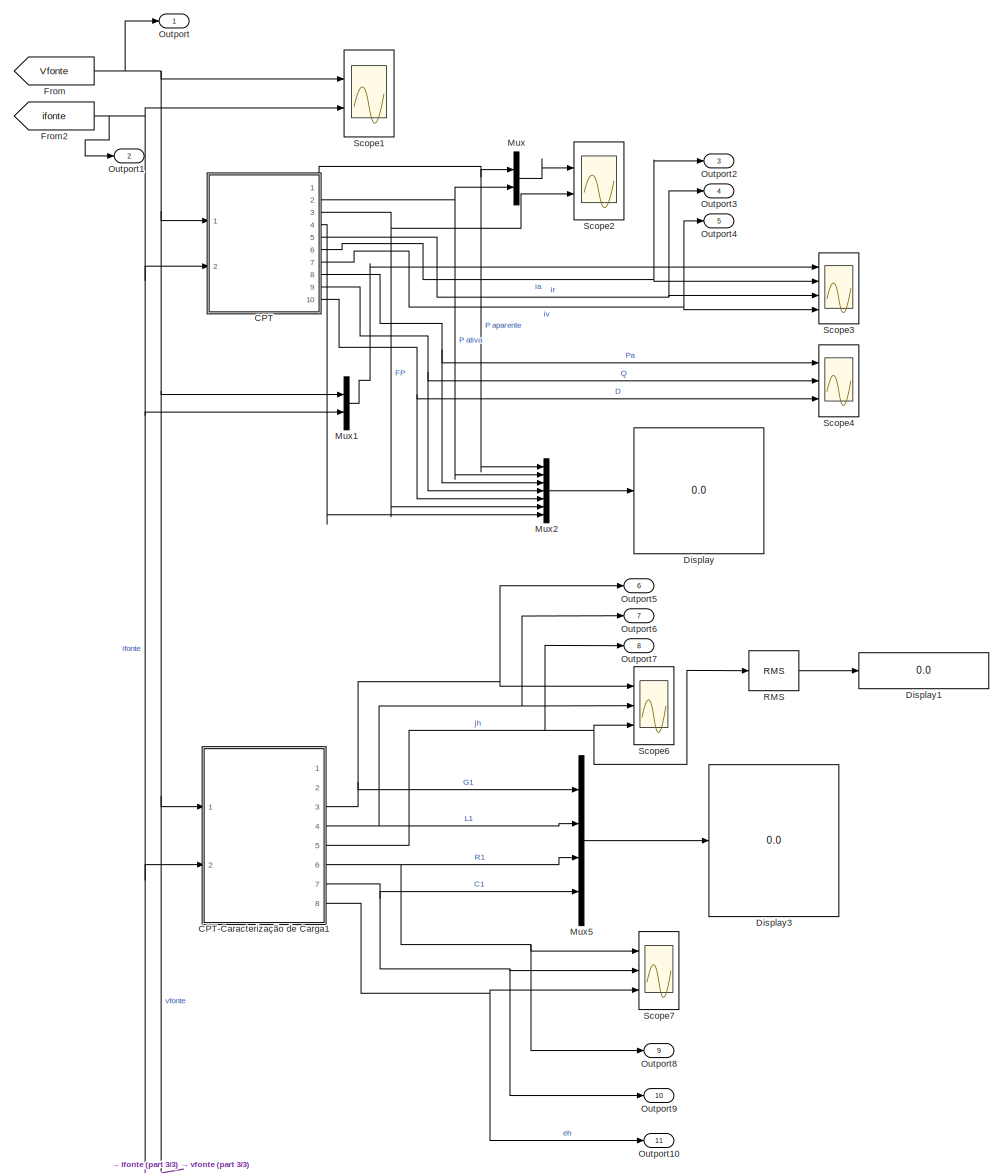
[diagram: root canvas - part 1/3, right side, full height]
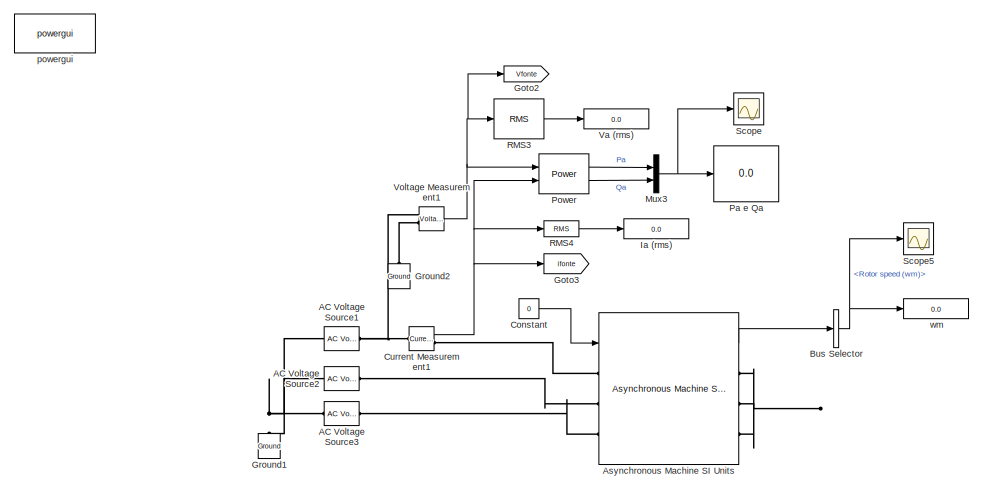
[diagram: root canvas - part 2/3, middle left region]
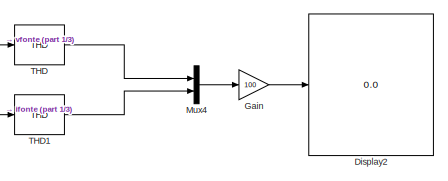
[diagram: root canvas - part 3/3, bottom right region]
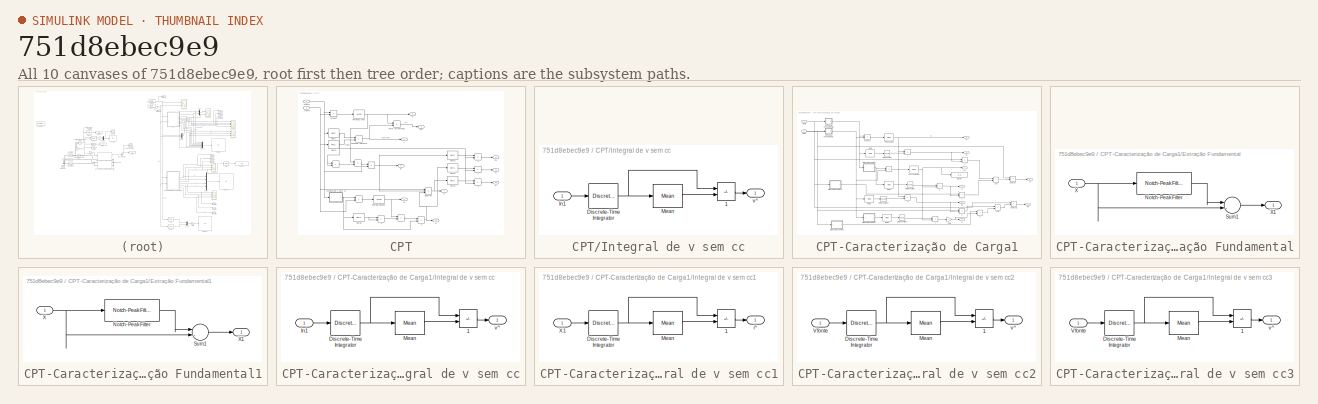
[diagram: thumbnail index - all 10 canvases of the model, root first then tree order]
MODEL slx_751d8ebec9e9
KIND model
CONFIG AbsTol = auto
CONFIG EnableMultiTasking = off
CONFIG FixedStep = auto
CONFIG MaxStep = auto
CONFIG MinStep = auto
CONFIG RelTol = 1e-3
CONFIG SampleTimeConstraint = Unconstrained
CONFIG SolverName = VariableStepAuto
CONFIG StartTime = 0.0
CONFIG StopTime = 3
BLOCK [Reference] AC Voltage Source1  REF=spsACVoltageSourceLib/AC Voltage Source
  NameLocation = left
  Ports = [0, 0, 0, 0, 0, 1, 1]
  SourceBlock = spsACVoltageSourceLib/AC Voltage Source
  SourceProductBaseCode = PS
  SourceType = AC Voltage Source
BLOCK [Reference] AC Voltage Source2  REF=spsACVoltageSourceLib/AC Voltage Source
  NameLocation = left
  Ports = [0, 0, 0, 0, 0, 1, 1]
  SourceBlock = spsACVoltageSourceLib/AC Voltage Source
  SourceProductBaseCode = PS
  SourceType = AC Voltage Source
BLOCK [Reference] AC Voltage Source3  REF=spsACVoltageSourceLib/AC Voltage Source
  NameLocation = left
  Ports = [0, 0, 0, 0, 0, 1, 1]
  SourceBlock = spsACVoltageSourceLib/AC Voltage Source
  SourceProductBaseCode = PS
  SourceType = AC Voltage Source
BLOCK [Reference] Asynchronous Machine SI Units  REF=spsAsynchronousMachineSIUnitsLib/Asynchronous Machine
SI Units
  Ports = [1, 1, 0, 0, 0, 3, 3]
  SourceBlock = spsAsynchronousMachineSIUnitsLib/Asynchronous Machine\nSI Units
  SourceProductBaseCode = PS
  SourceType = Asynchronous Machine
BLOCK [BusSelector] Bus Selector
  OutputSignals = Mechanical.Rotor speed (wm)
  Ports = [1, 1]
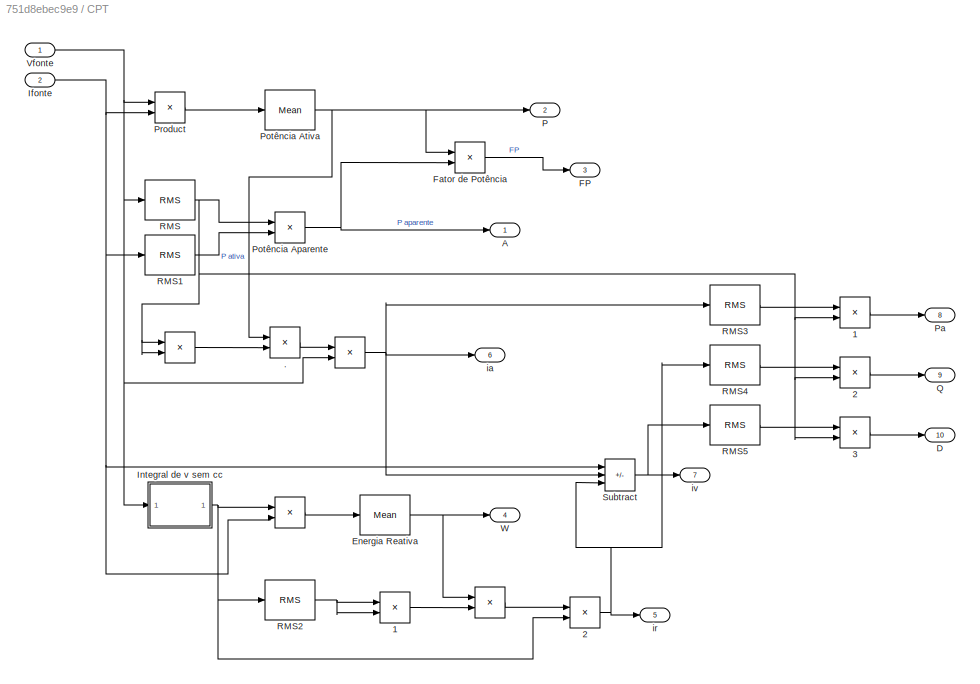
BLOCK [SubSystem] CPT
  Ports = [2, 10]
  RequestExecContextInheritance = off
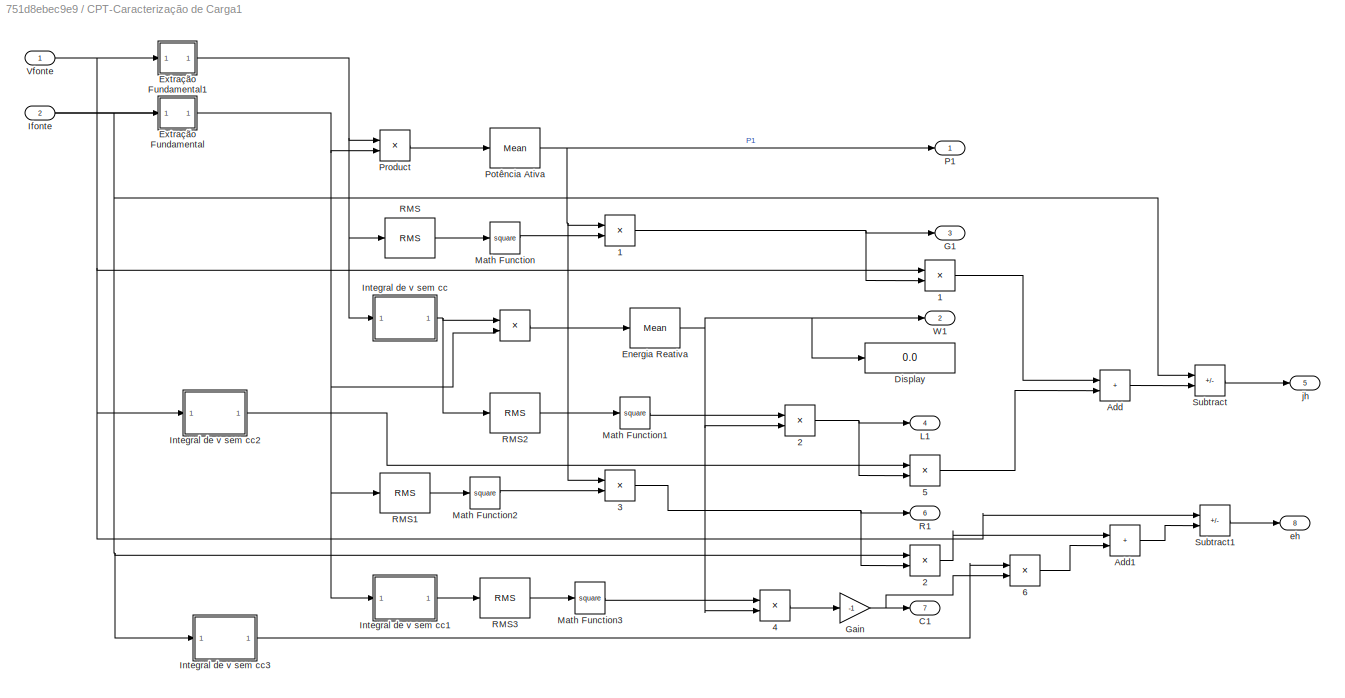
BLOCK [SubSystem] CPT-Caracterização de Carga1
  Ports = [2, 8]
  RequestExecContextInheritance = off
BLOCK [Product] CPT-Caracterização de Carga1/  
  Ports = [2, 1]
BLOCK [Product] CPT-Caracterização de Carga1/   1
  Inputs = */
  Ports = [2, 1]
BLOCK [Product] CPT-Caracterização de Carga1/   2
  Inputs = */
  Ports = [2, 1]
BLOCK [Product] CPT-Caracterização de Carga1/   3
  Inputs = */
  Ports = [2, 1]
BLOCK [Product] CPT-Caracterização de Carga1/   4
  Inputs = */
  Ports = [2, 1]
BLOCK [Product] CPT-Caracterização de Carga1/   5
  Inputs = */
  Ports = [2, 1]
BLOCK [Product] CPT-Caracterização de Carga1/   6
  Inputs = */
  Ports = [2, 1]
BLOCK [Product] CPT-Caracterização de Carga1/  1
  Ports = [2, 1]
BLOCK [Product] CPT-Caracterização de Carga1/  2
  Ports = [2, 1]
BLOCK [Sum] CPT-Caracterização de Carga1/Add
  IconShape = rectangular
  Ports = [2, 1]
BLOCK [Sum] CPT-Caracterização de Carga1/Add1
  IconShape = rectangular
  Ports = [2, 1]
BLOCK [Outport] CPT-Caracterização de Carga1/C1
  Port = 7
BLOCK [Display] CPT-Caracterização de Carga1/Display
  Decimation = 1
  Ports = [1]
BLOCK [Reference] CPT-Caracterização de Carga1/Energia Reativa  REF=spsMeanLib/Mean
  Ports = [1, 1]
  SourceBlock = spsMeanLib/Mean
  SourceProductBaseCode = PS
  SourceType = Mean
BLOCK [SubSystem] CPT-Caracterização de Carga1/Extração Fundamental
  Ports = [1, 1]
  RequestExecContextInheritance = off
BLOCK [Reference] CPT-Caracterização de Carga1/Extração Fundamental/Notch-Peak Filter  REF=dspfdesign/Notch-Peak Filter
  Ports = [1, 1]
  SourceBlock = dspfdesign/Notch-Peak Filter
  SourceProductBaseCode = DS
  SourceType = dsp.simulink.NotchPeakFilter
BLOCK [Sum] CPT-Caracterização de Carga1/Extração Fundamental/Sum1
  Inputs = |-+
  Ports = [2, 1]
BLOCK [Inport] CPT-Caracterização de Carga1/Extração Fundamental/X
BLOCK [Outport] CPT-Caracterização de Carga1/Extração Fundamental/X1
BLOCK [SubSystem] CPT-Caracterização de Carga1/Extração Fundamental1
  Ports = [1, 1]
  RequestExecContextInheritance = off
BLOCK [Reference] CPT-Caracterização de Carga1/Extração Fundamental1/Notch-Peak Filter  REF=dspfdesign/Notch-Peak Filter
  Ports = [1, 1]
  SourceBlock = dspfdesign/Notch-Peak Filter
  SourceProductBaseCode = DS
  SourceType = dsp.simulink.NotchPeakFilter
BLOCK [Sum] CPT-Caracterização de Carga1/Extração Fundamental1/Sum1
  Inputs = |-+
  Ports = [2, 1]
BLOCK [Inport] CPT-Caracterização de Carga1/Extração Fundamental1/X
BLOCK [Outport] CPT-Caracterização de Carga1/Extração Fundamental1/X1
BLOCK [Outport] CPT-Caracterização de Carga1/G1
  Port = 3
BLOCK [Gain] CPT-Caracterização de Carga1/Gain
  Gain = -1
BLOCK [Inport] CPT-Caracterização de Carga1/Ifonte
  Port = 2
BLOCK [SubSystem] CPT-Caracterização de Carga1/Integral de v sem cc
  Ports = [1, 1]
  RequestExecContextInheritance = off
BLOCK [Sum] CPT-Caracterização de Carga1/Integral de v sem cc/1
  IconShape = rectangular
  Inputs = +-
  Ports = [2, 1]
BLOCK [DiscreteIntegrator] CPT-Caracterização de Carga1/Integral de v sem cc/Discrete-Time Integrator
  ICPrevOutput = DiscIntNeverNeededParam
  ICPrevScaledInput = DiscIntNeverNeededParam
  InitialConditionSetting = Auto
  IntegratorMethod = Integration: Trapezoidal
  Ports = [1, 1]
  SampleTime = 1/12000
BLOCK [Inport] CPT-Caracterização de Carga1/Integral de v sem cc/In1
BLOCK [Reference] CPT-Caracterização de Carga1/Integral de v sem cc/Mean  REF=spsMeanLib/Mean
  Ports = [1, 1]
  SourceBlock = spsMeanLib/Mean
  SourceProductBaseCode = PS
  SourceType = Mean
BLOCK [Outport] CPT-Caracterização de Carga1/Integral de v sem cc/v^
BLOCK [SubSystem] CPT-Caracterização de Carga1/Integral de v sem cc1
  Ports = [1, 1]
  RequestExecContextInheritance = off
BLOCK [Sum] CPT-Caracterização de Carga1/Integral de v sem cc1/1
  IconShape = rectangular
  Inputs = +-
  Ports = [2, 1]
BLOCK [DiscreteIntegrator] CPT-Caracterização de Carga1/Integral de v sem cc1/Discrete-Time Integrator
  ICPrevOutput = DiscIntNeverNeededParam
  ICPrevScaledInput = DiscIntNeverNeededParam
  InitialConditionSetting = Auto
  IntegratorMethod = Integration: Trapezoidal
  Ports = [1, 1]
  SampleTime = 1/12000
BLOCK [Reference] CPT-Caracterização de Carga1/Integral de v sem cc1/Mean  REF=spsMeanLib/Mean
  Ports = [1, 1]
  SourceBlock = spsMeanLib/Mean
  SourceProductBaseCode = PS
  SourceType = Mean
BLOCK [Inport] CPT-Caracterização de Carga1/Integral de v sem cc1/X1
BLOCK [Outport] CPT-Caracterização de Carga1/Integral de v sem cc1/i^
BLOCK [SubSystem] CPT-Caracterização de Carga1/Integral de v sem cc2
  Ports = [1, 1]
  RequestExecContextInheritance = off
BLOCK [Sum] CPT-Caracterização de Carga1/Integral de v sem cc2/1
  IconShape = rectangular
  Inputs = +-
  Ports = [2, 1]
BLOCK [DiscreteIntegrator] CPT-Caracterização de Carga1/Integral de v sem cc2/Discrete-Time Integrator
  ICPrevOutput = DiscIntNeverNeededParam
  ICPrevScaledInput = DiscIntNeverNeededParam
  InitialConditionSetting = Auto
  IntegratorMethod = Integration: Trapezoidal
  Ports = [1, 1]
  SampleTime = 1/12000
BLOCK [Reference] CPT-Caracterização de Carga1/Integral de v sem cc2/Mean  REF=spsMeanLib/Mean
  Ports = [1, 1]
  SourceBlock = spsMeanLib/Mean
  SourceProductBaseCode = PS
  SourceType = Mean
BLOCK [Inport] CPT-Caracterização de Carga1/Integral de v sem cc2/Vfonte
BLOCK [Outport] CPT-Caracterização de Carga1/Integral de v sem cc2/v^
BLOCK [SubSystem] CPT-Caracterização de Carga1/Integral de v sem cc3
  Ports = [1, 1]
  RequestExecContextInheritance = off
BLOCK [Sum] CPT-Caracterização de Carga1/Integral de v sem cc3/1
  IconShape = rectangular
  Inputs = +-
  Ports = [2, 1]
BLOCK [DiscreteIntegrator] CPT-Caracterização de Carga1/Integral de v sem cc3/Discrete-Time Integrator
  ICPrevOutput = DiscIntNeverNeededParam
  ICPrevScaledInput = DiscIntNeverNeededParam
  InitialConditionSetting = Auto
  IntegratorMethod = Integration: Trapezoidal
  Ports = [1, 1]
  SampleTime = 1/12000
BLOCK [Reference] CPT-Caracterização de Carga1/Integral de v sem cc3/Mean  REF=spsMeanLib/Mean
  Ports = [1, 1]
  SourceBlock = spsMeanLib/Mean
  SourceProductBaseCode = PS
  SourceType = Mean
BLOCK [Inport] CPT-Caracterização de Carga1/Integral de v sem cc3/Vfonte
BLOCK [Outport] CPT-Caracterização de Carga1/Integral de v sem cc3/v^
BLOCK [Outport] CPT-Caracterização de Carga1/L1
  Port = 4
BLOCK [Math] CPT-Caracterização de Carga1/Math Function
  Operator = square
  Ports = [1, 1]
BLOCK [Math] CPT-Caracterização de Carga1/Math Function1
  Operator = square
  Ports = [1, 1]
BLOCK [Math] CPT-Caracterização de Carga1/Math Function2
  Operator = square
  Ports = [1, 1]
BLOCK [Math] CPT-Caracterização de Carga1/Math Function3
  Operator = square
  Ports = [1, 1]
BLOCK [Outport] CPT-Caracterização de Carga1/P1
BLOCK [Reference] CPT-Caracterização de Carga1/Potência Ativa  REF=spsMeanLib/Mean
  Ports = [1, 1]
  SourceBlock = spsMeanLib/Mean
  SourceProductBaseCode = PS
  SourceType = Mean
BLOCK [Product] CPT-Caracterização de Carga1/Product
  Ports = [2, 1]
BLOCK [Outport] CPT-Caracterização de Carga1/R1
  Port = 6
BLOCK [Reference] CPT-Caracterização de Carga1/RMS  REF=spsRMSLib/RMS
  Ports = [1, 1]
  SourceBlock = spsRMSLib/RMS
  SourceProductBaseCode = PS
  SourceType = RMS
BLOCK [Reference] CPT-Caracterização de Carga1/RMS1  REF=spsRMSLib/RMS
  Ports = [1, 1]
  SourceBlock = spsRMSLib/RMS
  SourceProductBaseCode = PS
  SourceType = RMS
BLOCK [Reference] CPT-Caracterização de Carga1/RMS2  REF=spsRMSLib/RMS
  Ports = [1, 1]
  SourceBlock = spsRMSLib/RMS
  SourceProductBaseCode = PS
  SourceType = RMS
BLOCK [Reference] CPT-Caracterização de Carga1/RMS3  REF=spsRMSLib/RMS
  Ports = [1, 1]
  SourceBlock = spsRMSLib/RMS
  SourceProductBaseCode = PS
  SourceType = RMS
BLOCK [Sum] CPT-Caracterização de Carga1/Subtract
  IconShape = rectangular
  Inputs = +-
  Ports = [2, 1]
BLOCK [Sum] CPT-Caracterização de Carga1/Subtract1
  IconShape = rectangular
  Inputs = +-
  Ports = [2, 1]
BLOCK [Inport] CPT-Caracterização de Carga1/Vfonte
BLOCK [Outport] CPT-Caracterização de Carga1/W1
  Port = 2
BLOCK [Outport] CPT-Caracterização de Carga1/eh
  Port = 8
BLOCK [Outport] CPT-Caracterização de Carga1/jh
  Port = 5
BLOCK [Product] CPT/  
  Ports = [2, 1]
BLOCK [Product] CPT/   
  Inputs = */
  Ports = [2, 1]
BLOCK [Product] CPT/    
  Ports = [2, 1]
BLOCK [Product] CPT/     
  Ports = [2, 1]
BLOCK [Product] CPT/     1
  Ports = [2, 1]
BLOCK [Product] CPT/     2
  Ports = [2, 1]
BLOCK [Product] CPT/     3
  Ports = [2, 1]
BLOCK [Product] CPT/  1
  Ports = [2, 1]
BLOCK [Product] CPT/  2
  Ports = [2, 1]
BLOCK [Product] CPT/.
  Inputs = */
  Ports = [2, 1]
BLOCK [Outport] CPT/A
BLOCK [Outport] CPT/D
  Port = 10
BLOCK [Reference] CPT/Energia Reativa  REF=spsMeanLib/Mean
  Ports = [1, 1]
  SourceBlock = spsMeanLib/Mean
  SourceProductBaseCode = PS
  SourceType = Mean
BLOCK [Outport] CPT/FP
  Port = 3
BLOCK [Product] CPT/Fator de Potência
  Inputs = */
  Ports = [2, 1]
BLOCK [Inport] CPT/Ifonte
  Port = 2
BLOCK [SubSystem] CPT/Integral de v sem cc
  Ports = [1, 1]
  RequestExecContextInheritance = off
BLOCK [Sum] CPT/Integral de v sem cc/1
  IconShape = rectangular
  Inputs = +-
  Ports = [2, 1]
BLOCK [DiscreteIntegrator] CPT/Integral de v sem cc/Discrete-Time Integrator
  ICPrevOutput = DiscIntNeverNeededParam
  ICPrevScaledInput = DiscIntNeverNeededParam
  InitialConditionSetting = Auto
  IntegratorMethod = Integration: Trapezoidal
  Ports = [1, 1]
  SampleTime = 1/12000
BLOCK [Inport] CPT/Integral de v sem cc/In1
BLOCK [Reference] CPT/Integral de v sem cc/Mean  REF=spsMeanLib/Mean
  Ports = [1, 1]
  SourceBlock = spsMeanLib/Mean
  SourceProductBaseCode = PS
  SourceType = Mean
BLOCK [Outport] CPT/Integral de v sem cc/v^
BLOCK [Outport] CPT/P
  Port = 2
BLOCK [Outport] CPT/Pa
  Port = 8
BLOCK [Product] CPT/Potência Aparente
  Ports = [2, 1]
BLOCK [Reference] CPT/Potência Ativa  REF=spsMeanLib/Mean
  Ports = [1, 1]
  SourceBlock = spsMeanLib/Mean
  SourceProductBaseCode = PS
  SourceType = Mean
BLOCK [Product] CPT/Product
  Ports = [2, 1]
BLOCK [Outport] CPT/Q
  Port = 9
BLOCK [Reference] CPT/RMS  REF=spsRMSLib/RMS
  Ports = [1, 1]
  SourceBlock = spsRMSLib/RMS
  SourceProductBaseCode = PS
  SourceType = RMS
BLOCK [Reference] CPT/RMS1  REF=spsRMSLib/RMS
  Ports = [1, 1]
  SourceBlock = spsRMSLib/RMS
  SourceProductBaseCode = PS
  SourceType = RMS
BLOCK [Reference] CPT/RMS2  REF=spsRMSLib/RMS
  Ports = [1, 1]
  SourceBlock = spsRMSLib/RMS
  SourceProductBaseCode = PS
  SourceType = RMS
BLOCK [Reference] CPT/RMS3  REF=spsRMSLib/RMS
  Ports = [1, 1]
  SourceBlock = spsRMSLib/RMS
  SourceProductBaseCode = PS
  SourceType = RMS
BLOCK [Reference] CPT/RMS4  REF=spsRMSLib/RMS
  Ports = [1, 1]
  SourceBlock = spsRMSLib/RMS
  SourceProductBaseCode = PS
  SourceType = RMS
BLOCK [Reference] CPT/RMS5  REF=spsRMSLib/RMS
  Ports = [1, 1]
  SourceBlock = spsRMSLib/RMS
  SourceProductBaseCode = PS
  SourceType = RMS
BLOCK [Sum] CPT/Subtract
  IconShape = rectangular
  Inputs = +--
  Ports = [3, 1]
BLOCK [Inport] CPT/Vfonte
BLOCK [Outport] CPT/W
  Port = 4
BLOCK [Outport] CPT/ia
  Port = 6
BLOCK [Outport] CPT/ir
  Port = 5
BLOCK [Outport] CPT/iv
  Port = 7
BLOCK [Constant] Constant
  Value = 0
BLOCK [Reference] Current Measurement1  REF=spsCurrentMeasurementLib/Current Measurement
  Ports = [0, 1, 0, 0, 0, 1, 1]
  SourceBlock = spsCurrentMeasurementLib/Current Measurement
  SourceProductBaseCode = PS
  SourceType = Current Measurement
  UserDataPersistent = on
BLOCK [Display] Display
  Decimation = 1
  Format = long
  Ports = [1]
BLOCK [Display] Display1
  Decimation = 1
  Format = long
  Ports = [1]
BLOCK [Display] Display2
  Decimation = 1
  Format = long
  Ports = [1]
BLOCK [Display] Display3
  Decimation = 1
  Format = long
  Ports = [1]
BLOCK [From] From
  GotoTag = Vfonte
BLOCK [From] From2
  GotoTag = ifonte
BLOCK [Gain] Gain
  Gain = 100
BLOCK [Goto] Goto2
  GotoTag = Vfonte
BLOCK [Goto] Goto3
  GotoTag = ifonte
BLOCK [Reference] Ground1  REF=spsGroundLib/Ground
  NameLocation = right
  Ports = [0, 0, 0, 0, 0, 1]
  SourceBlock = spsGroundLib/Ground
  SourceProductBaseCode = PS
  SourceType = Ground
BLOCK [Reference] Ground2  REF=spsGroundLib/Ground
  NameLocation = right
  Ports = [0, 0, 0, 0, 0, 1]
  SourceBlock = spsGroundLib/Ground
  SourceProductBaseCode = PS
  SourceType = Ground
BLOCK [Display] Ia (rms)
  Decimation = 1
  Ports = [1]
BLOCK [Mux] Mux
  DisplayOption = bar
  Inputs = 2
  Ports = [2, 1]
BLOCK [Mux] Mux1
  DisplayOption = bar
  Inputs = 2
  Ports = [2, 1]
BLOCK [Mux] Mux2
  DisplayOption = bar
  Inputs = 7
  Ports = [7, 1]
BLOCK [Mux] Mux3
  DisplayOption = bar
  Inputs = 2
  Ports = [2, 1]
BLOCK [Mux] Mux4
  DisplayOption = bar
  Inputs = 2
  Ports = [2, 1]
BLOCK [Mux] Mux5
  DisplayOption = bar
  Ports = [4, 1]
BLOCK [Outport] Outport
BLOCK [Outport] Outport1
  Port = 2
BLOCK [Outport] Outport10
  Port = 11
BLOCK [Outport] Outport2
  Port = 3
BLOCK [Outport] Outport3
  Port = 4
BLOCK [Outport] Outport4
  Port = 5
BLOCK [Outport] Outport5
  Port = 6
BLOCK [Outport] Outport6
  Port = 7
BLOCK [Outport] Outport7
  Port = 8
BLOCK [Outport] Outport8
  Port = 9
BLOCK [Outport] Outport9
  Port = 10
BLOCK [Display] Pa e Qa
  Decimation = 1
  Ports = [1]
BLOCK [Reference] Power  REF=spsPowerLib/Power
  Ports = [2, 2]
  SourceBlock = spsPowerLib/Power
  SourceProductBaseCode = PS
  SourceType = Power
BLOCK [Reference] RMS  REF=spsRMSLib/RMS
  Ports = [1, 1]
  SourceBlock = spsRMSLib/RMS
  SourceProductBaseCode = PS
  SourceType = RMS
BLOCK [Reference] RMS3  REF=spsRMSLib/RMS
  Ports = [1, 1]
  SourceBlock = spsRMSLib/RMS
  SourceProductBaseCode = PS
  SourceType = RMS
BLOCK [Reference] RMS4  REF=spsRMSLib/RMS
  Ports = [1, 1]
  SourceBlock = spsRMSLib/RMS
  SourceProductBaseCode = PS
  SourceType = RMS
BLOCK [Scope] Scope
  Floating = off
  NumInputPorts = 1
  Ports = [1]
  ScopeSpecificationString = Simulink.scopes.TimeScopeBlockCfg('CurrentConfiguration', extmgr.ConfigurationSet(extmgr.Configuration('Core','General UI',true),extmgr.Configuration('Core','Source UI',true),extmgr.Configuration('Sources','WiredSimulink',true,'DataLoggingVariableName','ScopeData1'),extmgr.Configuration('Visuals','Time Domain',true,'SerializedDisplays',{struct('MinYLimReal','-2494.49869','MaxYLimReal','5876.46465'...<+1415ch>
BLOCK [Scope] Scope1
  Floating = off
  NumInputPorts = 2
  Ports = [2]
  ScopeSpecificationString = Simulink.scopes.TimeScopeBlockCfg('CurrentConfiguration', extmgr.ConfigurationSet(extmgr.Configuration('Core','General UI',true),extmgr.Configuration('Core','Source UI',true),extmgr.Configuration('Sources','WiredSimulink',true,'DataLoggingVariableName','ScopeData1'),extmgr.Configuration('Visuals','Time Domain',true,'SerializedDisplays',{struct('MinYLimReal','-224.5064','MaxYLimReal','224.5064','YL...<+1525ch>
BLOCK [Scope] Scope2
  Floating = off
  NumInputPorts = 2
  Ports = [2]
  ScopeSpecificationString = Simulink.scopes.TimeScopeBlockCfg('CurrentConfiguration', extmgr.ConfigurationSet(extmgr.Configuration('Core','General UI',true),extmgr.Configuration('Core','Source UI',true),extmgr.Configuration('Sources','WiredSimulink',true,'DataLoggingVariableName','ScopeData2'),extmgr.Configuration('Visuals','Time Domain',true,'SerializedDisplays',{struct('MinYLimReal','-1202.36531','MaxYLimReal','10821.28779...<+2028ch>
BLOCK [Scope] Scope3
  Floating = off
  NumInputPorts = 4
  Ports = [4]
  ScopeSpecificationString = Simulink.scopes.TimeScopeBlockCfg('CurrentConfiguration', extmgr.ConfigurationSet(extmgr.Configuration('Core','General UI',true),extmgr.Configuration('Core','Source UI',true),extmgr.Configuration('Sources','WiredSimulink',true,'DataLoggingVariableName','ScopeData3'),extmgr.Configuration('Visuals','Time Domain',true,'SerializedDisplays',{struct('MinYLimReal','-224.5064','MaxYLimReal','224.5064','YL...<+3429ch>
BLOCK [Scope] Scope4
  Floating = off
  NumInputPorts = 3
  Ports = [3]
  ScopeSpecificationString = Simulink.scopes.TimeScopeBlockCfg('CurrentConfiguration', extmgr.ConfigurationSet(extmgr.Configuration('Core','General UI',true,'DisplayFullSourceName',true),extmgr.Configuration('Core','Source UI',true),extmgr.Configuration('Sources','WiredSimulink',true,'SampleTime','1/12000','DataLoggingVariableName','ScopeData4'),extmgr.Configuration('Visuals','Time Domain',true,'SerializedDisplays',{struct('M...<+2809ch>
BLOCK [Scope] Scope5
  Floating = off
  NumInputPorts = 1
  Ports = [1]
  ScopeSpecificationString = Simulink.scopes.TimeScopeBlockCfg('CurrentConfiguration', extmgr.ConfigurationSet(extmgr.Configuration('Core','General UI',true),extmgr.Configuration('Core','Source UI',true),extmgr.Configuration('Sources','WiredSimulink',true,'DataLoggingVariableName','ScopeData2'),extmgr.Configuration('Visuals','Time Domain',true,'SerializedDisplays',{struct('MinYLimReal','156.69343','MaxYLimReal','195.23443','Y...<+1487ch>
BLOCK [Scope] Scope6
  Floating = off
  NumInputPorts = 3
  Ports = [3]
  ScopeSpecificationString = Simulink.scopes.TimeScopeBlockCfg('CurrentConfiguration', extmgr.ConfigurationSet(extmgr.Configuration('Core','General UI',true),extmgr.Configuration('Core','Source UI',true),extmgr.Configuration('Sources','WiredSimulink',true,'DataLoggingVariableName','ScopeData5'),extmgr.Configuration('Visuals','Time Domain',true,'SerializedDisplays',{struct('MinYLimReal','0.22166','MaxYLimReal','0.2242','YLabel...<+2745ch>
BLOCK [Scope] Scope7
  Floating = off
  NumInputPorts = 3
  Ports = [3]
  ScopeSpecificationString = Simulink.scopes.TimeScopeBlockCfg('CurrentConfiguration', extmgr.ConfigurationSet(extmgr.Configuration('Core','General UI',true),extmgr.Configuration('Core','Source UI',true),extmgr.Configuration('Sources','WiredSimulink',true),extmgr.Configuration('Visuals','Time Domain',true,'SerializedDisplays',{struct('MinYLimReal','0.71008','MaxYLimReal','3.60926','YLabelReal','','MinYLimMag','0.71008','MaxYL...<+2696ch>
BLOCK [Reference] THD  REF=spsTHDLib/THD
  Ports = [1, 1]
  SourceBlock = spsTHDLib/THD
  SourceProductBaseCode = PS
  SourceType = THD
BLOCK [Reference] THD1  REF=spsTHDLib/THD
  Ports = [1, 1]
  SourceBlock = spsTHDLib/THD
  SourceProductBaseCode = PS
  SourceType = THD
BLOCK [Display] Va (rms)
  Decimation = 1
  Ports = [1]
BLOCK [Reference] Voltage Measurement1  REF=spsVoltageMeasurementLib/Voltage Measurement
  Ports = [0, 1, 0, 0, 0, 2]
  SourceBlock = spsVoltageMeasurementLib/Voltage Measurement
  SourceProductBaseCode = PS
  SourceType = Voltage Measurement
  UserDataPersistent = on
BLOCK [Reference] powergui  REF=spspowerguiLib/powergui
  Ports = []
  Priority = 1
  SourceBlock = spspowerguiLib/powergui
  SourceProductBaseCode = PS
  SourceType = PSB option menu block
BLOCK [Display] wm
  Decimation = 1
  Ports = [1]
LINE Asynchronous Machine SI Units:1 -> Bus Selector:1
NET Bus Selector:1 -> Scope5:1, wm:1
NET CPT-Caracterização de Carga1/   1:1 -> CPT-Caracterização de Carga1/  1:2, CPT-Caracterização de Carga1/G1:1
NET CPT-Caracterização de Carga1/   2:1 -> CPT-Caracterização de Carga1/   5:2, CPT-Caracterização de Carga1/L1:1
NET CPT-Caracterização de Carga1/   3:1 -> CPT-Caracterização de Carga1/  2:2, CPT-Caracterização de Carga1/R1:1
LINE CPT-Caracterização de Carga1/   4:1 -> CPT-Caracterização de Carga1/Gain:1
LINE CPT-Caracterização de Carga1/   5:1 -> CPT-Caracterização de Carga1/Add:2
LINE CPT-Caracterização de Carga1/   6:1 -> CPT-Caracterização de Carga1/Add1:2
LINE CPT-Caracterização de Carga1/  1:1 -> CPT-Caracterização de Carga1/Add:1
LINE CPT-Caracterização de Carga1/  2:1 -> CPT-Caracterização de Carga1/Add1:1
LINE CPT-Caracterização de Carga1/  :1 -> CPT-Caracterização de Carga1/Energia Reativa:1
LINE CPT-Caracterização de Carga1/Add1:1 -> CPT-Caracterização de Carga1/Subtract1:2
LINE CPT-Caracterização de Carga1/Add:1 -> CPT-Caracterização de Carga1/Subtract:2
NET CPT-Caracterização de Carga1/Energia Reativa:1 -> CPT-Caracterização de Carga1/   2:2, CPT-Caracterização de Carga1/   4:2, CPT-Caracterização de Carga1/Display:1, CPT-Caracterização de Carga1/W1:1
LINE CPT-Caracterização de Carga1/Extração Fundamental/Notch-Peak Filter:1 -> CPT-Caracterização de Carga1/Extração Fundamental/Sum1:1
LINE CPT-Caracterização de Carga1/Extração Fundamental/Sum1:1 -> CPT-Caracterização de Carga1/Extração Fundamental/X1:1
NET CPT-Caracterização de Carga1/Extração Fundamental/X:1 -> CPT-Caracterização de Carga1/Extração Fundamental/Notch-Peak Filter:1, CPT-Caracterização de Carga1/Extração Fundamental/Sum1:2
LINE CPT-Caracterização de Carga1/Extração Fundamental1/Notch-Peak Filter:1 -> CPT-Caracterização de Carga1/Extração Fundamental1/Sum1:1
LINE CPT-Caracterização de Carga1/Extração Fundamental1/Sum1:1 -> CPT-Caracterização de Carga1/Extração Fundamental1/X1:1
NET CPT-Caracterização de Carga1/Extração Fundamental1/X:1 -> CPT-Caracterização de Carga1/Extração Fundamental1/Notch-Peak Filter:1, CPT-Caracterização de Carga1/Extração Fundamental1/Sum1:2
NET CPT-Caracterização de Carga1/Extração Fundamental1:1 -> CPT-Caracterização de Carga1/Integral de v sem cc:1, CPT-Caracterização de Carga1/Product:1, CPT-Caracterização de Carga1/RMS:1
NET CPT-Caracterização de Carga1/Extração Fundamental:1 -> CPT-Caracterização de Carga1/  :2, CPT-Caracterização de Carga1/Integral de v sem cc1:1, CPT-Caracterização de Carga1/Product:2, CPT-Caracterização de Carga1/RMS1:1
NET CPT-Caracterização de Carga1/Gain:1 -> CPT-Caracterização de Carga1/   6:2, CPT-Caracterização de Carga1/C1:1
NET CPT-Caracterização de Carga1/Ifonte:1 -> CPT-Caracterização de Carga1/  2:1, CPT-Caracterização de Carga1/Extração Fundamental:1, CPT-Caracterização de Carga1/Integral de v sem cc3:1, CPT-Caracterização de Carga1/Subtract:1
LINE CPT-Caracterização de Carga1/Integral de v sem cc/1:1 -> CPT-Caracterização de Carga1/Integral de v sem cc/v^:1
NET CPT-Caracterização de Carga1/Integral de v sem cc/Discrete-Time Integrator:1 -> CPT-Caracterização de Carga1/Integral de v sem cc/1:1, CPT-Caracterização de Carga1/Integral de v sem cc/Mean:1
LINE CPT-Caracterização de Carga1/Integral de v sem cc/In1:1 -> CPT-Caracterização de Carga1/Integral de v sem cc/Discrete-Time Integrator:1
LINE CPT-Caracterização de Carga1/Integral de v sem cc/Mean:1 -> CPT-Caracterização de Carga1/Integral de v sem cc/1:2
LINE CPT-Caracterização de Carga1/Integral de v sem cc1/1:1 -> CPT-Caracterização de Carga1/Integral de v sem cc1/i^:1
NET CPT-Caracterização de Carga1/Integral de v sem cc1/Discrete-Time Integrator:1 -> CPT-Caracterização de Carga1/Integral de v sem cc1/1:1, CPT-Caracterização de Carga1/Integral de v sem cc1/Mean:1
LINE CPT-Caracterização de Carga1/Integral de v sem cc1/Mean:1 -> CPT-Caracterização de Carga1/Integral de v sem cc1/1:2
LINE CPT-Caracterização de Carga1/Integral de v sem cc1/X1:1 -> CPT-Caracterização de Carga1/Integral de v sem cc1/Discrete-Time Integrator:1
LINE CPT-Caracterização de Carga1/Integral de v sem cc1:1 -> CPT-Caracterização de Carga1/RMS3:1
LINE CPT-Caracterização de Carga1/Integral de v sem cc2/1:1 -> CPT-Caracterização de Carga1/Integral de v sem cc2/v^:1
NET CPT-Caracterização de Carga1/Integral de v sem cc2/Discrete-Time Integrator:1 -> CPT-Caracterização de Carga1/Integral de v sem cc2/1:1, CPT-Caracterização de Carga1/Integral de v sem cc2/Mean:1
LINE CPT-Caracterização de Carga1/Integral de v sem cc2/Mean:1 -> CPT-Caracterização de Carga1/Integral de v sem cc2/1:2
LINE CPT-Caracterização de Carga1/Integral de v sem cc2/Vfonte:1 -> CPT-Caracterização de Carga1/Integral de v sem cc2/Discrete-Time Integrator:1
LINE CPT-Caracterização de Carga1/Integral de v sem cc2:1 -> CPT-Caracterização de Carga1/   5:1
LINE CPT-Caracterização de Carga1/Integral de v sem cc3/1:1 -> CPT-Caracterização de Carga1/Integral de v sem cc3/v^:1
NET CPT-Caracterização de Carga1/Integral de v sem cc3/Discrete-Time Integrator:1 -> CPT-Caracterização de Carga1/Integral de v sem cc3/1:1, CPT-Caracterização de Carga1/Integral de v sem cc3/Mean:1
LINE CPT-Caracterização de Carga1/Integral de v sem cc3/Mean:1 -> CPT-Caracterização de Carga1/Integral de v sem cc3/1:2
LINE CPT-Caracterização de Carga1/Integral de v sem cc3/Vfonte:1 -> CPT-Caracterização de Carga1/Integral de v sem cc3/Discrete-Time Integrator:1
LINE CPT-Caracterização de Carga1/Integral de v sem cc3:1 -> CPT-Caracterização de Carga1/   6:1
NET CPT-Caracterização de Carga1/Integral de v sem cc:1 -> CPT-Caracterização de Carga1/  :1, CPT-Caracterização de Carga1/RMS2:1
LINE CPT-Caracterização de Carga1/Math Function1:1 -> CPT-Caracterização de Carga1/   2:1
LINE CPT-Caracterização de Carga1/Math Function2:1 -> CPT-Caracterização de Carga1/   3:2
LINE CPT-Caracterização de Carga1/Math Function3:1 -> CPT-Caracterização de Carga1/   4:1
LINE CPT-Caracterização de Carga1/Math Function:1 -> CPT-Caracterização de Carga1/   1:2
NET CPT-Caracterização de Carga1/Potência Ativa:1 -> CPT-Caracterização de Carga1/   1:1, CPT-Caracterização de Carga1/   3:1, CPT-Caracterização de Carga1/P1:1
LINE CPT-Caracterização de Carga1/Product:1 -> CPT-Caracterização de Carga1/Potência Ativa:1
LINE CPT-Caracterização de Carga1/RMS1:1 -> CPT-Caracterização de Carga1/Math Function2:1
LINE CPT-Caracterização de Carga1/RMS2:1 -> CPT-Caracterização de Carga1/Math Function1:1
LINE CPT-Caracterização de Carga1/RMS3:1 -> CPT-Caracterização de Carga1/Math Function3:1
LINE CPT-Caracterização de Carga1/RMS:1 -> CPT-Caracterização de Carga1/Math Function:1
LINE CPT-Caracterização de Carga1/Subtract1:1 -> CPT-Caracterização de Carga1/eh:1
LINE CPT-Caracterização de Carga1/Subtract:1 -> CPT-Caracterização de Carga1/jh:1
NET CPT-Caracterização de Carga1/Vfonte:1 -> CPT-Caracterização de Carga1/  1:1, CPT-Caracterização de Carga1/Extração Fundamental1:1, CPT-Caracterização de Carga1/Integral de v sem cc2:1, CPT-Caracterização de Carga1/Subtract1:1
NET CPT-Caracterização de Carga1:3 -> Mux5:1, Outport5:1, Scope6:1
NET CPT-Caracterização de Carga1:4 -> Mux5:2, Outport6:1, Scope6:2
NET CPT-Caracterização de Carga1:5 -> Outport7:1, RMS:1, Scope6:3
NET CPT-Caracterização de Carga1:6 -> Mux5:3, Outport8:1, Scope7:1
NET CPT-Caracterização de Carga1:7 -> Mux5:4, Outport9:1, Scope7:2
NET CPT-Caracterização de Carga1:8 -> Outport10:1, Scope7:3
LINE CPT/     1:1 -> CPT/Pa:1
LINE CPT/     2:1 -> CPT/Q:1
LINE CPT/     3:1 -> CPT/D:1
NET CPT/     :1 -> CPT/RMS3:1, CPT/Subtract:2, CPT/ia:1
LINE CPT/    :1 -> CPT/.:2
LINE CPT/   :1 -> CPT/  2:1
LINE CPT/  1:1 -> CPT/   :2
NET CPT/  2:1 -> CPT/RMS4:1, CPT/Subtract:3, CPT/ir:1
LINE CPT/  :1 -> CPT/Energia Reativa:1
LINE CPT/.:1 -> CPT/     :1
NET CPT/Energia Reativa:1 -> CPT/   :1, CPT/W:1
LINE CPT/Fator de Potência:1 -> CPT/FP:1
NET CPT/Ifonte:1 -> CPT/  :2, CPT/Product:2, CPT/RMS1:1, CPT/Subtract:1
LINE CPT/Integral de v sem cc/1:1 -> CPT/Integral de v sem cc/v^:1
NET CPT/Integral de v sem cc/Discrete-Time Integrator:1 -> CPT/Integral de v sem cc/1:1, CPT/Integral de v sem cc/Mean:1
LINE CPT/Integral de v sem cc/In1:1 -> CPT/Integral de v sem cc/Discrete-Time Integrator:1
LINE CPT/Integral de v sem cc/Mean:1 -> CPT/Integral de v sem cc/1:2
NET CPT/Integral de v sem cc:1 -> CPT/  2:2, CPT/  :1, CPT/RMS2:1
NET CPT/Potência Aparente:1 -> CPT/A:1, CPT/Fator de Potência:2
NET CPT/Potência Ativa:1 -> CPT/.:1, CPT/Fator de Potência:1, CPT/P:1
LINE CPT/Product:1 -> CPT/Potência Ativa:1
LINE CPT/RMS1:1 -> CPT/Potência Aparente:2
NET CPT/RMS2:1 -> CPT/  1:1, CPT/  1:2
LINE CPT/RMS3:1 -> CPT/     1:1
LINE CPT/RMS4:1 -> CPT/     2:1
LINE CPT/RMS5:1 -> CPT/     3:1
NET CPT/RMS:1 -> CPT/     1:2, CPT/     2:2, CPT/     3:2, CPT/    :1, CPT/    :2, CPT/Potência Aparente:1
NET CPT/Subtract:1 -> CPT/RMS5:1, CPT/iv:1
NET CPT/Vfonte:1 -> CPT/     :2, CPT/Integral de v sem cc:1, CPT/Product:1, CPT/RMS:1
NET CPT:1 -> Mux2:1, Mux:1
NET CPT:10 -> Mux2:5, Scope4:3
NET CPT:2 -> Mux2:2, Mux:2
NET CPT:3 -> Mux2:6, Scope2:2
LINE CPT:4 -> Mux2:7
NET CPT:5 -> Outport3:1, Scope3:3
NET CPT:6 -> Outport2:1, Scope3:2
NET CPT:7 -> Outport4:1, Scope3:4
NET CPT:8 -> Mux2:3, Scope4:1
NET CPT:9 -> Mux2:4, Scope4:2
LINE Constant:1 -> Asynchronous Machine SI Units:1
NET Current Measurement1:1 -> Goto3:1, Power:2, RMS4:1
NET From2:1 -> CPT-Caracterização de Carga1:2, CPT:2, Mux1:2, Outport1:1, Scope1:2, THD1:1
NET From:1 -> CPT-Caracterização de Carga1:1, CPT:1, Mux1:1, Outport:1, Scope1:1, THD:1
LINE Gain:1 -> Display2:1
LINE Mux1:1 -> Scope3:1
LINE Mux2:1 -> Display:1
NET Mux3:1 -> Pa e Qa:1, Scope:1
LINE Mux4:1 -> Gain:1
LINE Mux5:1 -> Display3:1
LINE Mux:1 -> Scope2:1
LINE Power:1 -> Mux3:1
LINE Power:2 -> Mux3:2
LINE RMS3:1 -> Va (rms):1
LINE RMS4:1 -> Ia (rms):1
LINE RMS:1 -> Display1:1
LINE THD1:1 -> Mux4:2
LINE THD:1 -> Mux4:1
NET Voltage Measurement1:1 -> Goto2:1, Power:1, RMS3:1
PNET net1: AC Voltage Source1:LConn1 -- AC Voltage Source2:LConn1 -- AC Voltage Source3:LConn1 -- Ground1:LConn1
PNET net2: AC Voltage Source1:RConn1 -- Current Measurement1:LConn1 -- Voltage Measurement1:LConn1
PLINE AC Voltage Source2:RConn1 -- Asynchronous Machine SI Units:LConn2
PLINE AC Voltage Source3:RConn1 -- Asynchronous Machine SI Units:LConn3
PLINE Asynchronous Machine SI Units:LConn1 -- Current Measurement1:RConn1
PNET net3: Asynchronous Machine SI Units:RConn1 -- Asynchronous Machine SI Units:RConn2 -- Asynchronous Machine SI Units:RConn3
PLINE Ground2:LConn1 -- Voltage Measurement1:LConn2
note: NET lines group one-source signal fan-out (src -> all destinations, sorted); 1:1 wires keep LINE; PNET lines group multi-terminal physical nets as a canonical sorted terminal list (undirected conserving connections); 2-terminal nets keep the pairwise PLINE form
